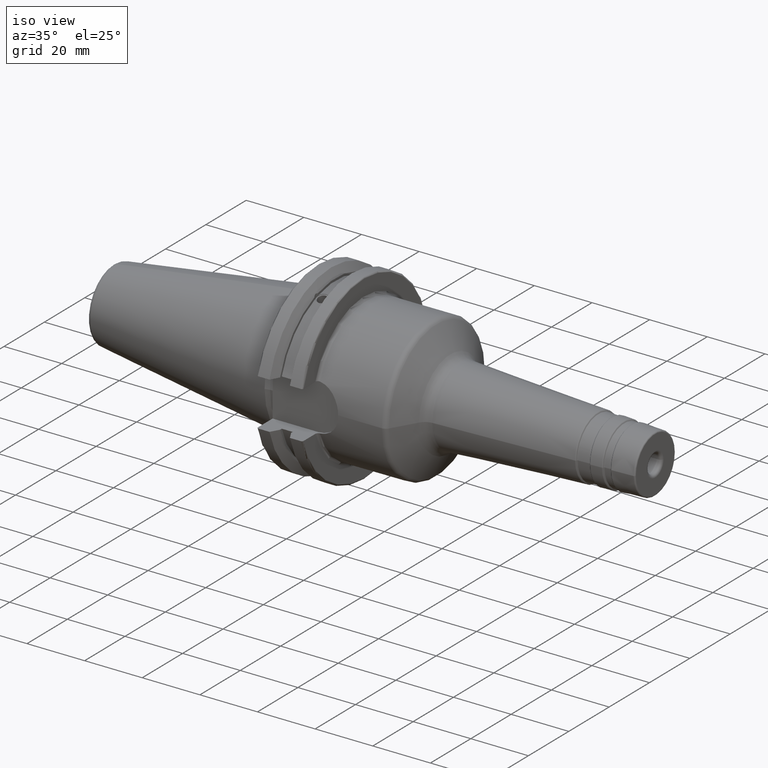
[diagram: clean part render]
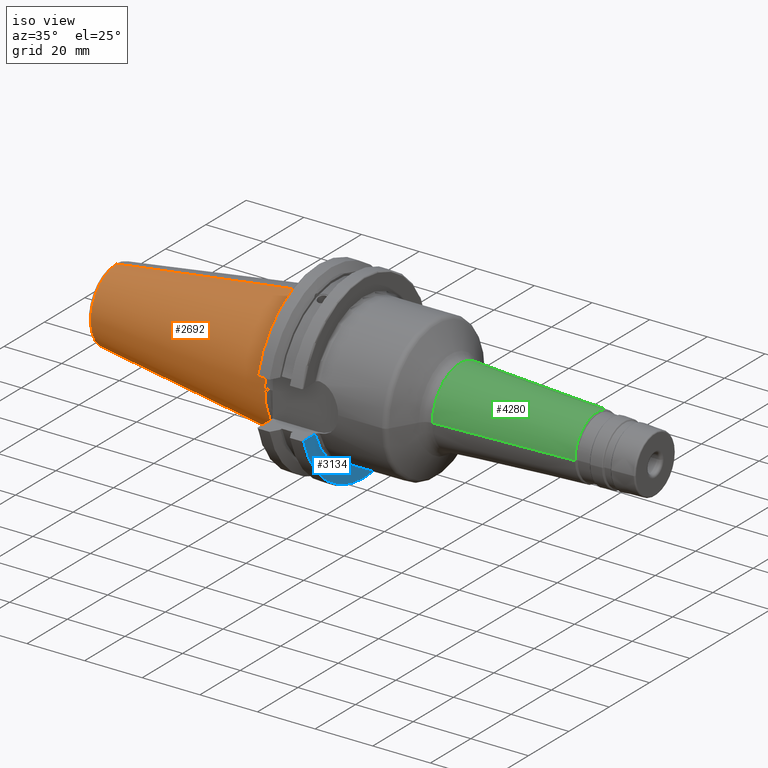
[diagram: same view with three faces highlighted in distinct colors, each labeled with its STEP entity id]
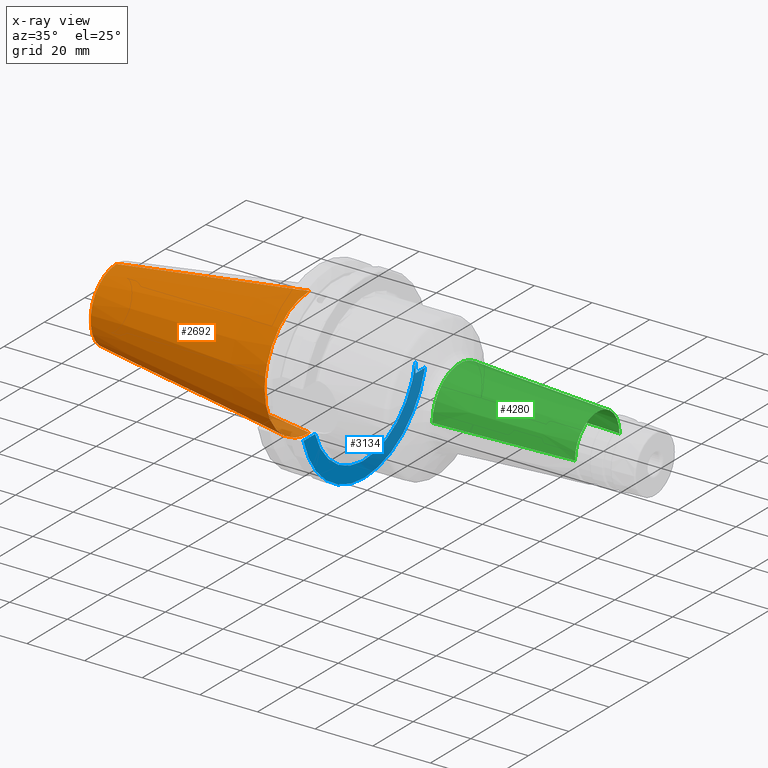
[diagram: x-ray of the same camera — body ghosted, the three highlighted faces saturated]
A machine part, iso view with three faces highlighted in distinct colors.
The next image is the same camera in x-ray (body ghosted, the three faces saturated) — at least one of them is partly hidden behind the body in this view.
Their STEP definitions:

[orange] entity #2692 — the highlighted conical surface has half-angle 8 deg.
#21=CARTESIAN_POINT('',(9.404160894455E-6,0.E0,-8.750350968063E-1));
#39=CARTESIAN_POINT('',(9.404160894899E-6,0.E0,8.750350968063E-1));
#40=CARTESIAN_POINT('',(9.404160894940E-6,-4.579037552743E-2,
8.750350968063E-1));
#41=CARTESIAN_POINT('',(4.001135143371E-4,-1.373905519960E-1,
8.678370960029E-1));
#42=CARTESIAN_POINT('',(2.430634477279E-4,-2.714571991100E-1,
8.356601185359E-1));
#43=CARTESIAN_POINT('',(2.851996840013E-4,-3.988534876110E-1,
7.829006255476E-1));
#44=CARTESIAN_POINT('',(2.737048055116E-4,-5.164185767630E-1,
7.108648007007E-1));
#45=CARTESIAN_POINT('',(2.775480831918E-4,-6.212704616941E-1,
6.213213286738E-1));
#46=CARTESIAN_POINT('',(2.736698509498E-4,-7.108219821237E-1,
5.164781244212E-1));
#47=CARTESIAN_POINT('',(2.853395022269E-4,-7.828674017787E-1,
3.989159160235E-1));
#48=CARTESIAN_POINT('',(2.425391293499E-4,-8.356412448259E-1,
2.715298521811E-1));
#49=CARTESIAN_POINT('',(4.020709695703E-4,-8.678091184727E-1,
1.374582554541E-1));
#50=CARTESIAN_POINT('',(5.186310889964E-6,-8.750759621837E-1,
4.581760021255E-2));
#51=CARTESIAN_POINT('',(5.184256354429E-6,-8.750759618949E-1,
-8.684607494127E-10));
#53=CARTESIAN_POINT('',(5.184256354429E-6,-8.750759618949E-1,
-8.684607494127E-10));
#54=CARTESIAN_POINT('',(5.185977047086E-6,-8.750759621367E-1,
-4.581760194087E-2));
#55=CARTESIAN_POINT('',(4.020711245056E-4,-8.678091184959E-1,
-1.374582546258E-1));
#56=CARTESIAN_POINT('',(2.425390878299E-4,-8.356412448387E-1,
-2.715298523387E-1));
#57=CARTESIAN_POINT('',(2.853395133448E-4,-7.828674017975E-1,
-3.989159159341E-1));
#58=CARTESIAN_POINT('',(2.736698479611E-4,-7.108219821412E-1,
-5.164781244139E-1));
#59=CARTESIAN_POINT('',(2.775480839808E-4,-6.212704616938E-1,
-6.213213286701E-1));
#60=CARTESIAN_POINT('',(2.737048052858E-4,-5.164185767854E-1,
-7.108648006840E-1));
#61=CARTESIAN_POINT('',(2.851996840459E-4,-3.988534876344E-1,
-7.829006255362E-1));
#62=CARTESIAN_POINT('',(2.430634477005E-4,-2.714571991277E-1,
-8.356601185298E-1));
#63=CARTESIAN_POINT('',(4.001135143223E-4,-1.373905520255E-1,
-8.678370959983E-1));
#64=CARTESIAN_POINT('',(9.404160894441E-6,-4.579037553948E-2,
-8.750350968063E-1));
#65=CARTESIAN_POINT('',(9.404160894455E-6,0.E0,-8.750350968063E-1));
#67=DIRECTION('',(-9.902663201239E-1,9.568653732772E-12,1.391855424545E-1));
#68=VECTOR('',#67,2.662132967208E0);
#69=CARTESIAN_POINT('',(9.404160894455E-6,0.E0,-8.750350968063E-1));
#70=LINE('',#69,#68);
#71=CARTESIAN_POINT('',(-2.636211212957E0,0.E0,0.E0));
#72=DIRECTION('',(-1.E0,0.E0,0.E0));
#73=DIRECTION('',(0.E0,0.E0,-1.E0));
#74=AXIS2_PLACEMENT_3D('',#71,#72,#73);
#76=DIRECTION('',(-9.902663201239E-1,-9.568651588075E-12,-1.391855424545E-1));
#77=VECTOR('',#76,2.662132967208E0);
#78=CARTESIAN_POINT('',(9.404160894899E-6,0.E0,8.750350968063E-1));
#79=LINE('',#78,#77);
#2324=CARTESIAN_POINT('',(-2.636211212957E0,0.E0,-5.045046756793E-1));
#2325=CARTESIAN_POINT('',(-2.636211212957E0,0.E0,5.045046756793E-1));
#2326=VERTEX_POINT('',#2324);
#2327=VERTEX_POINT('',#2325);
#2328=VERTEX_POINT('',#39);
#2329=VERTEX_POINT('',#51);
#2335=VERTEX_POINT('',#21);
#2678=CARTESIAN_POINT('',(-1.317954174432E0,0.E0,0.E0));
#2679=DIRECTION('',(1.E0,0.E0,0.E0));
#2680=DIRECTION('',(0.E0,0.E0,1.E0));
#2681=AXIS2_PLACEMENT_3D('',#2678,#2679,#2680);
#2682=CONICAL_SURFACE('',#2681,6.897736202258E-1,8.E0);
#2683=ORIENTED_EDGE('',*,*,#2666,.T.);
#2685=ORIENTED_EDGE('',*,*,#2684,.T.);
#2686=ORIENTED_EDGE('',*,*,#2654,.T.);
#2688=ORIENTED_EDGE('',*,*,#2687,.T.);
#2689=ORIENTED_EDGE('',*,*,#2650,.F.);
#2690=EDGE_LOOP('',(#2683,#2685,#2686,#2688,#2689));
#2691=FACE_OUTER_BOUND('',#2690,.F.);
#2692=ADVANCED_FACE('',(#2691),#2682,.T.);
#52=B_SPLINE_CURVE_WITH_KNOTS('',3,(#39,#40,#41,#42,#43,#44,#45,#46,#47,#48,#49,
#50,#51),.UNSPECIFIED.,.F.,.F.,(4,1,1,1,1,1,1,1,1,1,4),(0.E0,1.E-1,2.E-1,3.E-1,
4.E-1,5.E-1,6.E-1,7.E-1,8.E-1,9.E-1,1.E0),.UNSPECIFIED.);
#66=B_SPLINE_CURVE_WITH_KNOTS('',3,(#53,#54,#55,#56,#57,#58,#59,#60,#61,#62,#63,
#64,#65),.UNSPECIFIED.,.F.,.F.,(4,1,1,1,1,1,1,1,1,1,4),(0.E0,1.E-1,2.E-1,3.E-1,
4.E-1,5.E-1,6.E-1,7.E-1,8.E-1,9.E-1,1.E0),.UNSPECIFIED.);
#75=CIRCLE('',#74,5.045046756793E-1);
#2650=EDGE_CURVE('',#2328,#2327,#79,.T.);
#2654=EDGE_CURVE('',#2335,#2326,#70,.T.);
#2666=EDGE_CURVE('',#2328,#2329,#52,.T.);
#2684=EDGE_CURVE('',#2329,#2335,#66,.T.);
#2687=EDGE_CURVE('',#2326,#2327,#75,.T.);

[blue] entity #3134 — the highlighted planar face has unit normal (1, 0, 0).
#251=CARTESIAN_POINT('',(7.5E-1,0.E0,0.E0));
#252=DIRECTION('',(1.E0,0.E0,0.E0));
#253=DIRECTION('',(0.E0,-9.651252351613E-1,-2.617886178862E-1));
#254=AXIS2_PLACEMENT_3D('',#251,#252,#253);
#431=CARTESIAN_POINT('',(7.5E-1,0.E0,0.E0));
#432=DIRECTION('',(1.E0,0.E0,0.E0));
#433=DIRECTION('',(0.E0,-9.481350709724E-1,-3.178677196446E-1));
#434=AXIS2_PLACEMENT_3D('',#431,#432,#433);
#436=DIRECTION('',(0.E0,-3.032066301711E-6,-9.999999999954E-1));
#437=VECTOR('',#436,1.603668338586E-1);
#438=CARTESIAN_POINT('',(7.5E-1,1.000000486243E0,-1.616331661421E-1));
#439=LINE('',#438,#437);
#440=DIRECTION('',(0.E0,-1.E0,0.E0));
#441=VECTOR('',#440,1.871040392485E-1);
#442=CARTESIAN_POINT('',(7.5E-1,1.187104039248E0,-3.22E-1));
#443=LINE('',#442,#441);
#444=DIRECTION('',(0.E0,1.E0,0.E0));
#445=VECTOR('',#444,2.266432123534E-1);
#446=CARTESIAN_POINT('',(7.5E-1,-1.187104039248E0,-3.22E-1));
#447=LINE('',#446,#445);
#2256=CARTESIAN_POINT('',(7.5E-1,1.E0,-3.22E-1));
#2257=VERTEX_POINT('',#2256);
#2284=CARTESIAN_POINT('',(7.5E-1,-1.187104039248E0,-3.22E-1));
#2285=CARTESIAN_POINT('',(7.5E-1,1.187104039248E0,-3.22E-1));
#2286=VERTEX_POINT('',#2284);
#2287=VERTEX_POINT('',#2285);
#2574=CARTESIAN_POINT('',(7.5E-1,-9.604608268951E-1,-3.22E-1));
#2575=CARTESIAN_POINT('',(7.5E-1,1.000062441396E0,-1.613818865571E-1));
#2576=VERTEX_POINT('',#2574);
#2577=VERTEX_POINT('',#2575);
#3121=CARTESIAN_POINT('',(7.5E-1,0.E0,0.E0));
#3122=DIRECTION('',(1.E0,0.E0,0.E0));
#3123=DIRECTION('',(0.E0,0.E0,1.E0));
#3124=AXIS2_PLACEMENT_3D('',#3121,#3122,#3123);
#3125=PLANE('',#3124);
#3126=ORIENTED_EDGE('',*,*,#3015,.T.);
#3127=ORIENTED_EDGE('',*,*,#3034,.T.);
#3129=ORIENTED_EDGE('',*,*,#3128,.F.);
#3130=ORIENTED_EDGE('',*,*,#2889,.F.);
#3131=ORIENTED_EDGE('',*,*,#2905,.T.);
#3132=EDGE_LOOP('',(#3126,#3127,#3129,#3130,#3131));
#3133=FACE_OUTER_BOUND('',#3132,.F.);
#3134=ADVANCED_FACE('',(#3133),#3125,.T.);
#255=CIRCLE('',#254,1.23E0);
#435=CIRCLE('',#434,1.013E0);
#2889=EDGE_CURVE('',#2286,#2287,#255,.T.);
#2905=EDGE_CURVE('',#2286,#2576,#447,.T.);
#3015=EDGE_CURVE('',#2576,#2577,#435,.T.);
#3034=EDGE_CURVE('',#2577,#2257,#439,.T.);
#3128=EDGE_CURVE('',#2287,#2257,#443,.T.);

[green] entity #4280 — the highlighted conical surface has half-angle 3 deg.
#1537=DIRECTION('',(-9.986295347546E-1,5.233595624294E-2,1.792915697155E-11));
#1538=VECTOR('',#1537,1.881086694358E0);
#1539=CARTESIAN_POINT('',(3.931635951263E0,4.350260401780E-1,
-3.468217448377E-11));
#1540=LINE('',#1539,#1538);
#1546=DIRECTION('',(-9.986295347546E-1,-5.233595624294E-2,-1.792920663285E-11));
#1547=VECTOR('',#1546,1.881086694358E0);
#1548=CARTESIAN_POINT('',(3.931635951263E0,-4.350260401780E-1,
3.468225121566E-11));
#1549=LINE('',#1548,#1547);
#1596=CARTESIAN_POINT('',(3.931635951261E0,0.E0,0.E0));
#1597=DIRECTION('',(-1.E0,0.E0,0.E0));
#1598=DIRECTION('',(0.E0,-1.E0,0.E0));
#1599=AXIS2_PLACEMENT_3D('',#1596,#1597,#1598);
#1601=CARTESIAN_POINT('',(2.053127220842E0,0.E0,0.E0));
#1602=DIRECTION('',(1.E0,0.E0,0.E0));
#1603=DIRECTION('',(0.E0,1.E0,0.E0));
#1604=AXIS2_PLACEMENT_3D('',#1601,#1602,#1603);
#2599=CARTESIAN_POINT('',(2.053127220842E0,-5.334745111032E-1,0.E0));
#2600=CARTESIAN_POINT('',(2.053127220842E0,5.334745111032E-1,0.E0));
#2601=VERTEX_POINT('',#2599);
#2602=VERTEX_POINT('',#2600);
#2603=CARTESIAN_POINT('',(3.931635951261E0,4.350260401781E-1,0.E0));
#2604=CARTESIAN_POINT('',(3.931635951261E0,-4.350260401781E-1,0.E0));
#2605=VERTEX_POINT('',#2603);
#2606=VERTEX_POINT('',#2604);
#4268=CARTESIAN_POINT('',(3.379086969984E0,0.E0,0.E0));
#4269=DIRECTION('',(-1.E0,0.E0,0.E0));
#4270=DIRECTION('',(0.E0,1.E0,0.E0));
#4271=AXIS2_PLACEMENT_3D('',#4268,#4269,#4270);
#4272=CONICAL_SURFACE('',#4271,4.639839052320E-1,3.E0);
#4273=ORIENTED_EDGE('',*,*,#4259,.F.);
#4274=ORIENTED_EDGE('',*,*,#4203,.T.);
#4276=ORIENTED_EDGE('',*,*,#4275,.F.);
#4277=ORIENTED_EDGE('',*,*,#4199,.F.);
#4278=EDGE_LOOP('',(#4273,#4274,#4276,#4277));
#4279=FACE_OUTER_BOUND('',#4278,.F.);
#4280=ADVANCED_FACE('',(#4279),#4272,.T.);
#1600=CIRCLE('',#1599,4.350260401781E-1);
#1605=CIRCLE('',#1604,5.334745111032E-1);
#4199=EDGE_CURVE('',#2605,#2602,#1540,.T.);
#4203=EDGE_CURVE('',#2606,#2601,#1549,.T.);
#4259=EDGE_CURVE('',#2606,#2605,#1600,.T.);
#4275=EDGE_CURVE('',#2602,#2601,#1605,.T.);